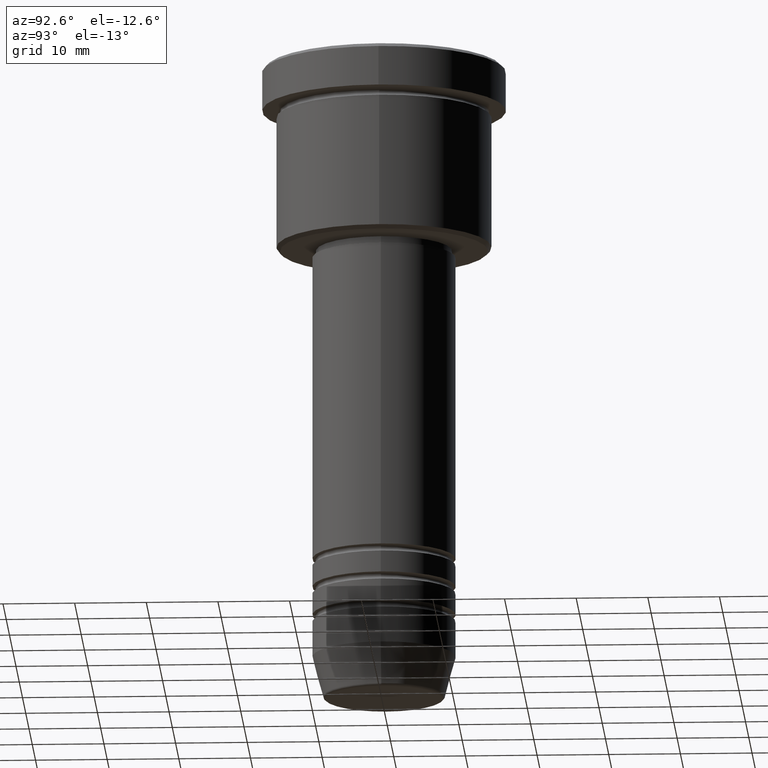
[diagram: clean part render]
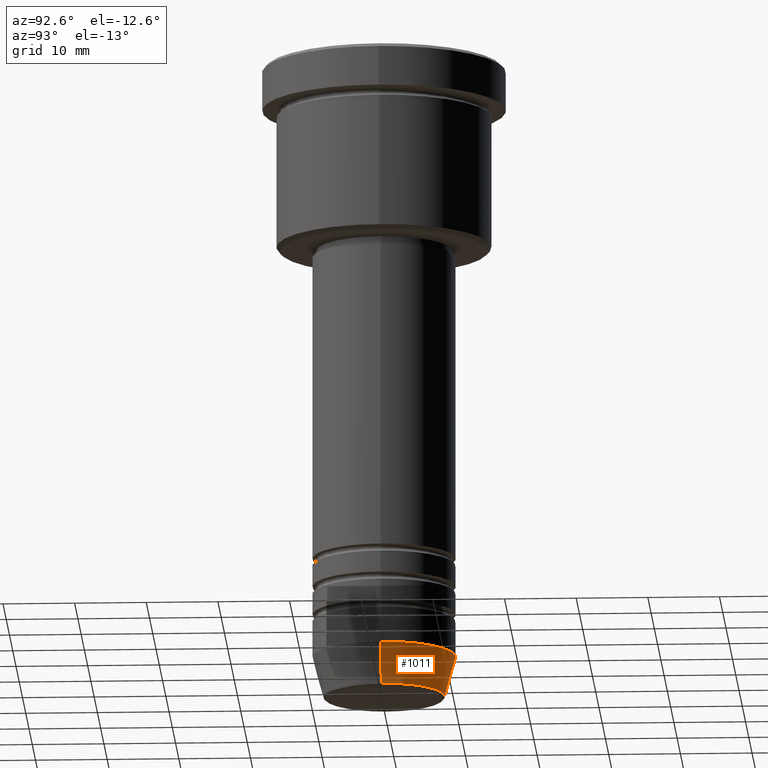
[diagram: same view with one face highlighted and labeled with its STEP entity id]
A machine part, auxiliary view. The second image highlights one B-rep face of the part: STEP entity #1011.
In plain terms, the highlighted conical surface has half-angle 15 deg.
Its self-contained STEP definition (entity closure, byte-faithful):
#17 = EDGE_LOOP ( 'NONE', ( #829, #534, #64, #1075 ) ) ;
#24 = CIRCLE ( 'NONE', #157, 8.491604264568312743 ) ;
#46 = CONICAL_SURFACE ( 'NONE', #952, 10.00000000000000178, 0.2617993877991501295 ) ;
#64 = ORIENTED_EDGE ( 'NONE', *, *, #237, .F. ) ;
#75 = VERTEX_POINT ( 'NONE', #1157 ) ;
#81 = DIRECTION ( 'NONE',  ( -0.000000000000000000, -0.000000000000000000, 1.000000000000000000 ) ) ;
#86 = AXIS2_PLACEMENT_3D ( 'NONE', #164, #81, #349 ) ;
#157 = AXIS2_PLACEMENT_3D ( 'NONE', #872, #161, #880 ) ;
#161 = DIRECTION ( 'NONE',  ( -0.000000000000000000, -0.000000000000000000, 1.000000000000000000 ) ) ;
#164 = CARTESIAN_POINT ( 'NONE',  ( 0.000000000000000000, 0.000000000000000000, -83.99999999999998579 ) ) ;
#237 = EDGE_CURVE ( 'NONE', #1050, #75, #612, .T. ) ;
#349 = DIRECTION ( 'NONE',  ( 1.000000000000000000, 0.000000000000000000, 0.000000000000000000 ) ) ;
#365 = VECTOR ( 'NONE', #1015, 1000.000000000000000 ) ;
#373 = VERTEX_POINT ( 'NONE', #749 ) ;
#375 = CARTESIAN_POINT ( 'NONE',  ( 10.00000000000000178, 0.000000000000000000, -83.99999999999998579 ) ) ;
#475 = LINE ( 'NONE', #375, #365 ) ;
#494 = LINE ( 'NONE', #696, #913 ) ;
#534 = ORIENTED_EDGE ( 'NONE', *, *, #1146, .T. ) ;
#584 = CARTESIAN_POINT ( 'NONE',  ( 10.00000000000000178, 0.000000000000000000, -83.99999999999998579 ) ) ;
#612 = CIRCLE ( 'NONE', #86, 10.00000000000000178 ) ;
#679 = VERTEX_POINT ( 'NONE', #708 ) ;
#684 = CARTESIAN_POINT ( 'NONE',  ( 0.000000000000000000, 0.000000000000000000, -83.99999999999998579 ) ) ;
#696 = CARTESIAN_POINT ( 'NONE',  ( -10.00000000000000178, 1.224646799147353454E-15, -83.99999999999998579 ) ) ;
#708 = CARTESIAN_POINT ( 'NONE',  ( -8.491604264568312743, 1.132284198685156781E-15, -89.62940952255125637 ) ) ;
#749 = CARTESIAN_POINT ( 'NONE',  ( 8.491604264568312743, 0.000000000000000000, -89.62940952255125637 ) ) ;
#809 = EDGE_CURVE ( 'NONE', #373, #679, #24, .T. ) ;
#829 = ORIENTED_EDGE ( 'NONE', *, *, #809, .T. ) ;
#863 = FACE_OUTER_BOUND ( 'NONE', #17, .T. ) ;
#869 = DIRECTION ( 'NONE',  ( -0.2588190451025214056, 3.169619151431772953E-17, 0.9659258262890680902 ) ) ;
#872 = CARTESIAN_POINT ( 'NONE',  ( 0.000000000000000000, 0.000000000000000000, -89.62940952255125637 ) ) ;
#880 = DIRECTION ( 'NONE',  ( 1.000000000000000000, 0.000000000000000000, 0.000000000000000000 ) ) ;
#913 = VECTOR ( 'NONE', #869, 1000.000000000000000 ) ;
#952 = AXIS2_PLACEMENT_3D ( 'NONE', #684, #1143, #1044 ) ;
#970 = EDGE_CURVE ( 'NONE', #373, #1050, #475, .T. ) ;
#1011 = ADVANCED_FACE ( 'NONE', ( #863 ), #46, .T. ) ;
#1015 = DIRECTION ( 'NONE',  ( 0.2588190451025214056, 0.000000000000000000, 0.9659258262890680902 ) ) ;
#1044 = DIRECTION ( 'NONE',  ( 1.000000000000000000, 0.000000000000000000, 0.000000000000000000 ) ) ;
#1050 = VERTEX_POINT ( 'NONE', #584 ) ;
#1075 = ORIENTED_EDGE ( 'NONE', *, *, #970, .F. ) ;
#1143 = DIRECTION ( 'NONE',  ( -0.000000000000000000, -0.000000000000000000, 1.000000000000000000 ) ) ;
#1146 = EDGE_CURVE ( 'NONE', #679, #75, #494, .T. ) ;
#1157 = CARTESIAN_POINT ( 'NONE',  ( -10.00000000000000178, 1.224646799147353454E-15, -83.99999999999998579 ) ) ;